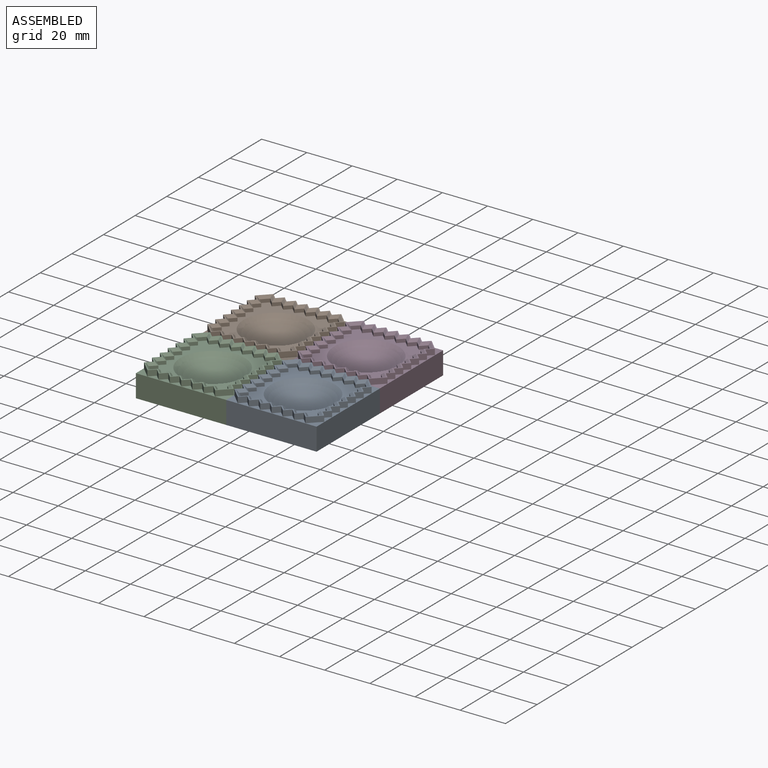
[diagram: assembled view]
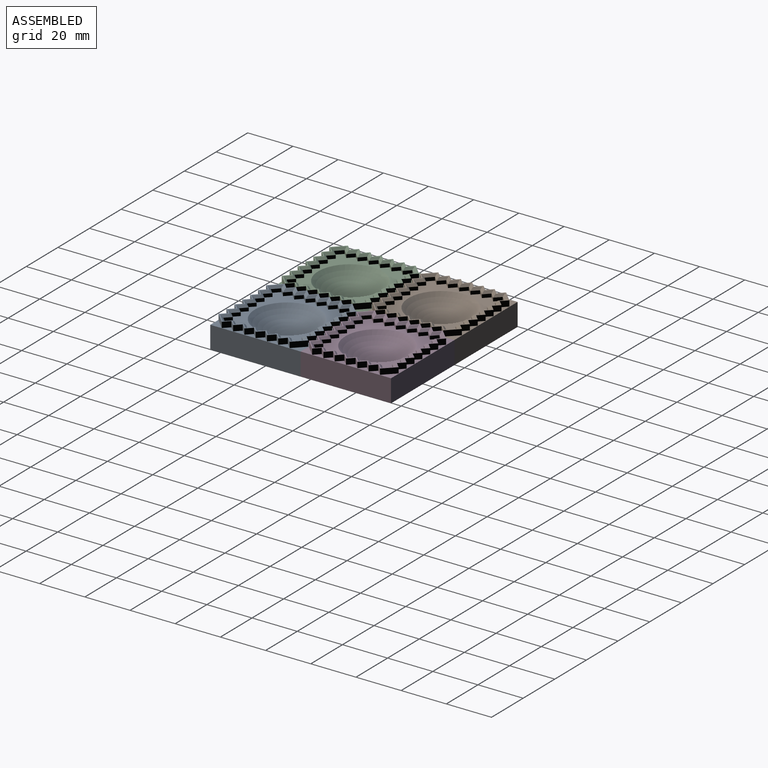
[diagram: assembled view, second angle]
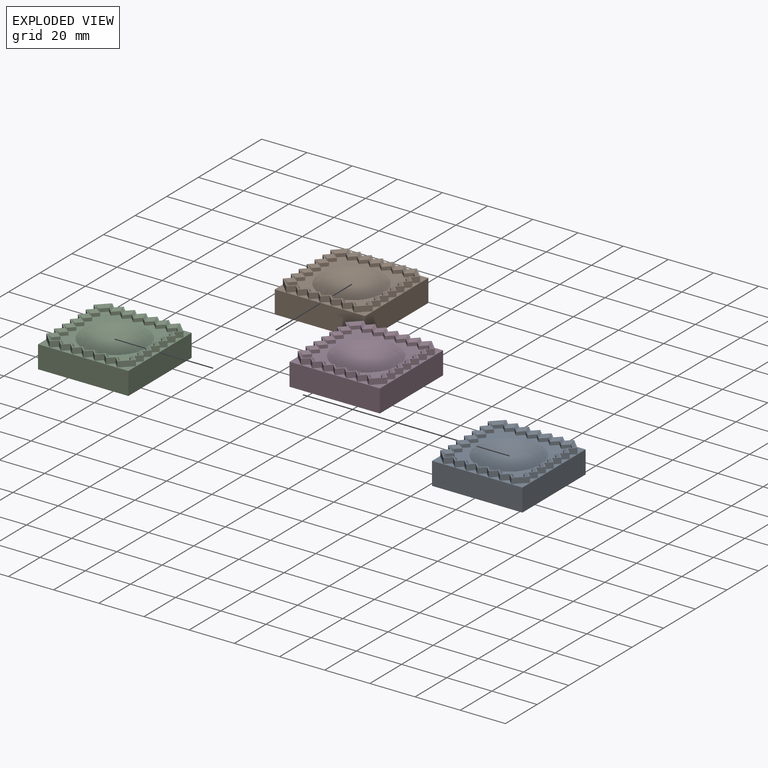
[diagram: exploded view]
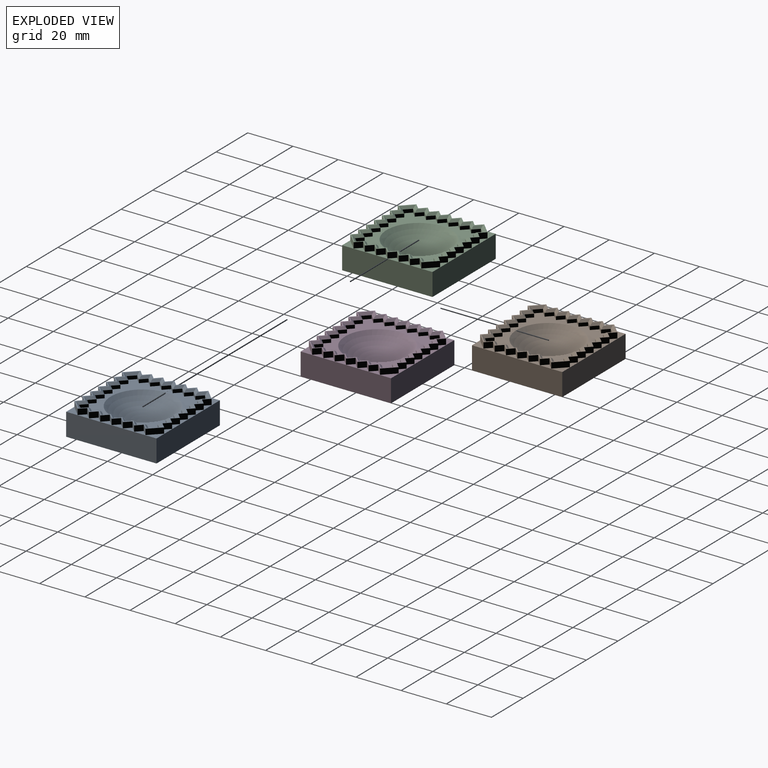
[diagram: exploded view, second angle]
ASSEMBLY  parts=4 mates=6
PART A: 165 faces, bbox 40x40x12.5 mm
  f0: plane 40x10mm, normal (1,0,0), area 400mm2, adj f1,f3,f4,f5
  f1: plane 40x10mm, normal (0,1,0), area 400mm2, adj f0,f2,f4,f5
  f2: plane 40x10mm, normal (-1,0,0), area 400mm2, adj f1,f3,f4,f5
  f3: plane 40x10mm, normal (0,-1,0), area 400mm2, adj f0,f2,f4,f5
  f4: plane 40x40mm, normal (0,0,1), area 218mm2, adj f0,f1,f2,f3,f6,f7,f8,f9
  f5: plane 40x40mm, normal (0,0,-1), area 1600mm2, adj f0,f1,f2,f3
  f6: plane 2.5x2.5mm, normal (-0.71,0.71,0), area 8.8mm2, adj f4,f7,f109,f110
  f7: plane 2.5x2.5mm, normal (-0.71,-0.71,0), area 8.8mm2, adj f4,f6,f8,f110
  f8: plane 2.5x2.5mm, normal (-0.71,0.71,0), area 8.8mm2, adj f4,f7,f9,f110
  f9: plane 2.5x2.5mm, normal (-0.71,-0.71,0), area 8.8mm2, adj f4,f8,f10,f110
  f10: plane 2.5x2.5mm, normal (-0.71,0.71,0), area 8.8mm2, adj f4,f9,f11,f110
  f11: plane 2.5x2.5mm, normal (-0.71,-0.71,0), area 8.8mm2, adj f4,f10,f12,f110
  f12: plane 2.5x2.5mm, normal (-0.71,0.71,0), area 8.8mm2, adj f4,f11,f13,f110
  f13: plane 4.87x4.87mm, normal (-0.71,-0.71,0), area 17.2mm2, adj f4,f12,f14,f110
  f14: plane 2.5x2.5mm, normal (0.71,-0.71,0), area 8.8mm2, adj f4,f13,f15,f110
  f15: plane 2.5x2.5mm, normal (-0.71,-0.71,0), area 8.8mm2, adj f4,f14,f16,f110
  f16: plane 2.5x2.5mm, normal (0.71,-0.71,0), area 8.8mm2, adj f4,f15,f17,f110
  f17: plane 2.5x2.5mm, normal (-0.71,-0.71,0), area 8.8mm2, adj f4,f16,f18,f110
  f18: plane 2.5x2.5mm, normal (0.71,-0.71,0), area 8.8mm2, adj f4,f17,f19,f110
  f19: plane 2.5x2.5mm, normal (-0.71,-0.71,0), area 8.8mm2, adj f4,f18,f20,f110
  f20: plane 2.5x2.5mm, normal (0.71,-0.71,0), area 8.8mm2, adj f4,f19,f21,f110
  f21: plane 2.5x2.5mm, normal (-0.71,-0.71,0), area 8.8mm2, adj f4,f20,f22,f110
  f22: plane 2.5x2.5mm, normal (0.71,-0.71,0), area 8.8mm2, adj f4,f21,f23,f110
  f23: plane 2.5x2.5mm, normal (-0.71,-0.71,0), area 8.8mm2, adj f4,f22,f24,f110
  f24: plane 2.5x2.5mm, normal (0.71,-0.71,0), area 8.8mm2, adj f4,f23,f25,f110
  f25: plane 2.5x2.5mm, normal (-0.71,-0.71,0), area 8.8mm2, adj f4,f24,f26,f110
  f26: plane 4.87x4.87mm, normal (0.71,-0.71,0), area 17.2mm2, adj f4,f25,f27,f110
  f27: plane 2.5x2.5mm, normal (0.71,0.71,0), area 8.8mm2, adj f4,f26,f28,f110
  f28: plane 2.5x2.5mm, normal (0.71,-0.71,0), area 8.8mm2, adj f4,f27,f29,f110
  f29: plane 2.5x2.5mm, normal (0.71,0.71,0), area 8.8mm2, adj f4,f28,f30,f110
  f30: plane 2.5x2.5mm, normal (0.71,-0.71,0), area 8.8mm2, adj f4,f29,f31,f110
  f31: plane 2.5x2.5mm, normal (0.71,0.71,0), area 8.8mm2, adj f4,f30,f32,f110
  f32: plane 2.5x2.5mm, normal (0.71,-0.71,0), area 8.8mm2, adj f4,f31,f33,f110
  f33: plane 2.5x2.5mm, normal (0.71,0.71,0), area 8.8mm2, adj f4,f32,f34,f110
  f34: plane 2.5x2.5mm, normal (0.71,-0.71,0), area 8.8mm2, adj f4,f33,f35,f110
  f35: plane 2.5x2.5mm, normal (0.71,0.71,0), area 8.8mm2, adj f4,f34,f36,f110
  f36: plane 2.5x2.5mm, normal (0.71,-0.71,0), area 8.8mm2, adj f4,f35,f37,f110
  f37: plane 2.5x2.5mm, normal (0.71,0.71,0), area 8.8mm2, adj f4,f36,f38,f110
  f38: plane 2.5x2.5mm, normal (0.71,-0.71,0), area 8.8mm2, adj f4,f37,f39,f110
  f39: plane 4.87x4.87mm, normal (0.71,0.71,0), area 17.2mm2, adj f4,f38,f40,f110
  f40: plane 2.5x2.5mm, normal (-0.71,0.71,0), area 8.8mm2, adj f4,f39,f41,f110
  f41: plane 2.5x2.5mm, normal (0.71,0.71,0), area 8.8mm2, adj f4,f40,f42,f110
  f42: plane 2.5x2.5mm, normal (-0.71,0.71,0), area 8.8mm2, adj f4,f41,f43,f110
  f43: plane 2.5x2.5mm, normal (0.71,0.71,0), area 8.8mm2, adj f4,f42,f44,f110
  f44: plane 2.5x2.5mm, normal (-0.71,0.71,0), area 8.8mm2, adj f4,f43,f45,f110
  f45: plane 2.5x2.5mm, normal (0.71,0.71,0), area 8.8mm2, adj f4,f44,f46,f110
  f46: plane 2.5x2.5mm, normal (-0.71,0.71,0), area 8.8mm2, adj f4,f45,f47,f110
  f47: plane 2.5x2.5mm, normal (0.71,0.71,0), area 8.8mm2, adj f4,f46,f48,f110
  f48: plane 2.5x2.5mm, normal (-0.71,0.71,0), area 8.8mm2, adj f4,f47,f49,f110
  f49: plane 2.5x2.5mm, normal (0.71,0.71,0), area 8.8mm2, adj f4,f48,f50,f110
  f50: plane 2.5x2.5mm, normal (-0.71,0.71,0), area 8.8mm2, adj f4,f49,f51,f110
  f51: plane 2.5x2.5mm, normal (0.71,0.71,0), area 8.8mm2, adj f4,f50,f52,f110
  f52: plane 4.87x4.87mm, normal (-0.71,0.71,0), area 17.2mm2, adj f4,f51,f53,f110
  f53: plane 2.5x2.5mm, normal (-0.71,-0.71,0), area 8.8mm2, adj f4,f52,f54,f110
  f54: plane 2.5x2.5mm, normal (-0.71,0.71,0), area 8.8mm2, adj f4,f53,f55,f110
  f55: plane 2.5x2.5mm, normal (-0.71,-0.71,0), area 8.8mm2, adj f4,f54,f56,f110
  f56: plane 2.5x2.5mm, normal (-0.71,0.71,0), area 8.8mm2, adj f4,f55,f109,f110
  f57: plane 2.75x2.75mm, normal (0.71,-0.71,0), area 5.8mm2, adj f58,f108,f112,f164
  f58: plane 2.5x2.5mm, normal (-0.71,-0.71,0), area 5.3mm2, adj f57,f59,f112,f162
  f59: plane 2.5x2.5mm, normal (0.71,-0.71,0), area 5.3mm2, adj f58,f60,f112,f160
  f60: plane 2.5x2.5mm, normal (-0.71,-0.71,0), area 5.3mm2, adj f59,f61,f112,f158
  f61: plane 2.5x2.5mm, normal (0.71,-0.71,0), area 5.3mm2, adj f60,f62,f112,f156
  f62: plane 2.5x2.5mm, normal (-0.71,-0.71,0), area 5.3mm2, adj f61,f63,f112,f154
  f63: plane 2.5x2.5mm, normal (0.71,-0.71,0), area 5.3mm2, adj f62,f64,f112,f152
  f64: plane 2.5x2.5mm, normal (-0.71,-0.71,0), area 5.3mm2, adj f63,f65,f112,f150
  f65: plane 2.5x2.5mm, normal (0.71,-0.71,0), area 5.3mm2, adj f64,f66,f112,f148
  f66: plane 2.5x2.5mm, normal (-0.71,-0.71,0), area 5.3mm2, adj f65,f67,f112,f146
  f67: plane 2.5x2.5mm, normal (0.71,-0.71,0), area 5.3mm2, adj f66,f68,f112,f144
  f68: plane 2.5x2.5mm, normal (-0.71,-0.71,0), area 5.3mm2, adj f67,f69,f112,f142
  f69: plane 2.5x2.5mm, normal (0.71,-0.71,0), area 5.3mm2, adj f68,f70,f112,f140
  f70: plane 2.75x2.75mm, normal (-0.71,-0.71,0), area 5.8mm2, adj f69,f71,f112,f138
  f71: plane 2.5x2.5mm, normal (-0.71,0.71,0), area 5.3mm2, adj f70,f72,f112,f136
  f72: plane 2.5x2.5mm, normal (-0.71,-0.71,0), area 5.3mm2, adj f71,f73,f112,f134
  f73: plane 2.5x2.5mm, normal (-0.71,0.71,0), area 5.3mm2, adj f72,f74,f112,f132
  f74: plane 2.5x2.5mm, normal (-0.71,-0.71,0), area 5.3mm2, adj f73,f75,f112,f130
  f75: plane 2.5x2.5mm, normal (-0.71,0.71,0), area 5.3mm2, adj f74,f76,f112,f128
  f76: plane 2.5x2.5mm, normal (-0.71,-0.71,0), area 5.3mm2, adj f75,f77,f112,f126
  f77: plane 2.5x2.5mm, normal (-0.71,0.71,0), area 5.3mm2, adj f76,f78,f112,f124
  f78: plane 2.5x2.5mm, normal (-0.71,-0.71,0), area 5.3mm2, adj f77,f79,f112,f122
  f79: plane 2.5x2.5mm, normal (-0.71,0.71,0), area 5.3mm2, adj f78,f80,f112,f120
  f80: plane 2.5x2.5mm, normal (-0.71,-0.71,0), area 5.3mm2, adj f79,f81,f112,f118
  f81: plane 2.5x2.5mm, normal (-0.71,0.71,0), area 5.3mm2, adj f80,f82,f112,f116
  f82: plane 2.5x2.5mm, normal (-0.71,-0.71,0), area 5.3mm2, adj f81,f83,f112,f114
  f83: plane 2.75x2.75mm, normal (-0.71,0.71,0), area 5.8mm2, adj f82,f84,f112,f113
  f84: plane 2.5x2.5mm, normal (0.71,0.71,0), area 5.3mm2, adj f83,f85,f112,f115
  f85: plane 2.5x2.5mm, normal (-0.71,0.71,0), area 5.3mm2, adj f84,f86,f112,f117
  f86: plane 2.5x2.5mm, normal (0.71,0.71,0), area 5.3mm2, adj f85,f87,f112,f119
  f87: plane 2.5x2.5mm, normal (-0.71,0.71,0), area 5.3mm2, adj f86,f88,f112,f121
  f88: plane 2.5x2.5mm, normal (0.71,0.71,0), area 5.3mm2, adj f87,f89,f112,f123
  f89: plane 2.5x2.5mm, normal (-0.71,0.71,0), area 5.3mm2, adj f88,f90,f112,f125
  f90: plane 2.5x2.5mm, normal (0.71,0.71,0), area 5.3mm2, adj f89,f91,f112,f127
  f91: plane 2.5x2.5mm, normal (-0.71,0.71,0), area 5.3mm2, adj f90,f92,f112,f129
  f92: plane 2.5x2.5mm, normal (0.71,0.71,0), area 5.3mm2, adj f91,f93,f112,f131
  f93: plane 2.5x2.5mm, normal (-0.71,0.71,0), area 5.3mm2, adj f92,f94,f112,f133
  f94: plane 2.5x2.5mm, normal (0.71,0.71,0), area 5.3mm2, adj f93,f95,f112,f135
  f95: plane 2.5x2.5mm, normal (-0.71,0.71,0), area 5.3mm2, adj f94,f96,f112,f137
  f96: plane 2.75x2.75mm, normal (0.71,0.71,0), area 5.8mm2, adj f95,f97,f112,f139
  f97: plane 2.5x2.5mm, normal (0.71,-0.71,0), area 5.3mm2, adj f96,f98,f112,f141
  f98: plane 2.5x2.5mm, normal (0.71,0.71,0), area 5.3mm2, adj f97,f99,f112,f143
  f99: plane 2.5x2.5mm, normal (0.71,-0.71,0), area 5.3mm2, adj f98,f100,f112,f145
  f100: plane 2.5x2.5mm, normal (0.71,0.71,0), area 5.3mm2, adj f99,f101,f112,f147
  f101: plane 2.5x2.5mm, normal (0.71,-0.71,0), area 5.3mm2, adj f100,f102,f112,f149
  f102: plane 2.5x2.5mm, normal (0.71,0.71,0), area 5.3mm2, adj f101,f103,f112,f151
  f103: plane 2.5x2.5mm, normal (0.71,-0.71,0), area 5.3mm2, adj f102,f104,f112,f153
  f104: plane 2.5x2.5mm, normal (0.71,0.71,0), area 5.3mm2, adj f103,f105,f112,f155
  f105: plane 2.5x2.5mm, normal (0.71,-0.71,0), area 5.3mm2, adj f104,f106,f112,f157
  f106: plane 2.5x2.5mm, normal (0.71,0.71,0), area 5.3mm2, adj f105,f107,f112,f159
  f107: plane 2.5x2.5mm, normal (0.71,-0.71,0), area 5.3mm2, adj f106,f108,f112,f161
  f108: plane 2.5x2.5mm, normal (0.71,0.71,0), area 5.3mm2, adj f57,f107,f112,f163
  f109: plane 2.5x2.5mm, normal (-0.71,-0.71,0), area 8.8mm2, adj f4,f6,f56,f110
  f110: plane 39.74x39.74mm, normal (0,0,1), area 97.6mm2, adj f6,f7,f8,f9,f10,f11,f12,f13
  f111: sphere r=20mm, area 754mm2, adj f112
  f112: plane 35.5x35.5mm, normal (0,0,1), area 454.2mm2, adj f57,f58,f59,f60,f61,f62,f63,f64
  f113: plane 4.16x4.16mm, normal (-0.5,0.5,0.71), area 6.9mm2, adj f83,f110,f114,f115
  f114: plane 3.91x2.5mm, normal (-0.5,-0.5,0.71), area 5mm2, adj f82,f110,f113,f116
  f115: plane 3.91x2.5mm, normal (0.5,0.5,0.71), area 5mm2, adj f84,f110,f113,f117
  f116: plane 3.91x2.5mm, normal (-0.5,0.5,0.71), area 5mm2, adj f81,f110,f114,f118
  f117: plane 3.91x2.5mm, normal (-0.5,0.5,0.71), area 5mm2, adj f85,f110,f115,f119
  f118: plane 3.91x2.5mm, normal (-0.5,-0.5,0.71), area 5mm2, adj f80,f110,f116,f120
  f119: plane 3.91x2.5mm, normal (0.5,0.5,0.71), area 5mm2, adj f86,f110,f117,f121
  f120: plane 3.91x2.5mm, normal (-0.5,0.5,0.71), area 5mm2, adj f79,f110,f118,f122
  f121: plane 3.91x2.5mm, normal (-0.5,0.5,0.71), area 5mm2, adj f87,f110,f119,f123
  f122: plane 3.91x2.5mm, normal (-0.5,-0.5,0.71), area 5mm2, adj f78,f110,f120,f124
  f123: plane 3.91x2.5mm, normal (0.5,0.5,0.71), area 5mm2, adj f88,f110,f121,f125
  f124: plane 3.91x2.5mm, normal (-0.5,0.5,0.71), area 5mm2, adj f77,f110,f122,f126
  f125: plane 3.91x2.5mm, normal (-0.5,0.5,0.71), area 5mm2, adj f89,f110,f123,f127
  f126: plane 3.91x2.5mm, normal (-0.5,-0.5,0.71), area 5mm2, adj f76,f110,f124,f128
  f127: plane 3.91x2.5mm, normal (0.5,0.5,0.71), area 5mm2, adj f90,f110,f125,f129
  f128: plane 3.91x2.5mm, normal (-0.5,0.5,0.71), area 5mm2, adj f75,f110,f126,f130
  f129: plane 3.91x2.5mm, normal (-0.5,0.5,0.71), area 5mm2, adj f91,f110,f127,f131
  f130: plane 3.91x2.5mm, normal (-0.5,-0.5,0.71), area 5mm2, adj f74,f110,f128,f132
  f131: plane 3.91x2.5mm, normal (0.5,0.5,0.71), area 5mm2, adj f92,f110,f129,f133
  f132: plane 3.91x2.5mm, normal (-0.5,0.5,0.71), area 5mm2, adj f73,f110,f130,f134
  f133: plane 3.91x2.5mm, normal (-0.5,0.5,0.71), area 5mm2, adj f93,f110,f131,f135
  f134: plane 3.91x2.5mm, normal (-0.5,-0.5,0.71), area 5mm2, adj f72,f110,f132,f136
  f135: plane 3.91x2.5mm, normal (0.5,0.5,0.71), area 5mm2, adj f94,f110,f133,f137
  f136: plane 3.91x2.5mm, normal (-0.5,0.5,0.71), area 5mm2, adj f71,f110,f134,f138
  f137: plane 3.91x2.5mm, normal (-0.5,0.5,0.71), area 5mm2, adj f95,f110,f135,f139
  f138: plane 4.16x4.16mm, normal (-0.5,-0.5,0.71), area 6.9mm2, adj f70,f110,f136,f140
  f139: plane 4.16x4.16mm, normal (0.5,0.5,0.71), area 6.9mm2, adj f96,f110,f137,f141
  f140: plane 3.91x2.5mm, normal (0.5,-0.5,0.71), area 5mm2, adj f69,f110,f138,f142
  f141: plane 3.91x2.5mm, normal (0.5,-0.5,0.71), area 5mm2, adj f97,f110,f139,f143
  f142: plane 3.91x2.5mm, normal (-0.5,-0.5,0.71), area 5mm2, adj f68,f110,f140,f144
  f143: plane 3.91x2.5mm, normal (0.5,0.5,0.71), area 5mm2, adj f98,f110,f141,f145
  f144: plane 3.91x2.5mm, normal (0.5,-0.5,0.71), area 5mm2, adj f67,f110,f142,f146
  f145: plane 3.91x2.5mm, normal (0.5,-0.5,0.71), area 5mm2, adj f99,f110,f143,f147
  f146: plane 3.91x2.5mm, normal (-0.5,-0.5,0.71), area 5mm2, adj f66,f110,f144,f148
  f147: plane 3.91x2.5mm, normal (0.5,0.5,0.71), area 5mm2, adj f100,f110,f145,f149
  f148: plane 3.91x2.5mm, normal (0.5,-0.5,0.71), area 5mm2, adj f65,f110,f146,f150
  f149: plane 3.91x2.5mm, normal (0.5,-0.5,0.71), area 5mm2, adj f101,f110,f147,f151
  f150: plane 3.91x2.5mm, normal (-0.5,-0.5,0.71), area 5mm2, adj f64,f110,f148,f152
  f151: plane 3.91x2.5mm, normal (0.5,0.5,0.71), area 5mm2, adj f102,f110,f149,f153
  f152: plane 3.91x2.5mm, normal (0.5,-0.5,0.71), area 5mm2, adj f63,f110,f150,f154
  f153: plane 3.91x2.5mm, normal (0.5,-0.5,0.71), area 5mm2, adj f103,f110,f151,f155
  f154: plane 3.91x2.5mm, normal (-0.5,-0.5,0.71), area 5mm2, adj f62,f110,f152,f156
  f155: plane 3.91x2.5mm, normal (0.5,0.5,0.71), area 5mm2, adj f104,f110,f153,f157
  f156: plane 3.91x2.5mm, normal (0.5,-0.5,0.71), area 5mm2, adj f61,f110,f154,f158
  f157: plane 3.91x2.5mm, normal (0.5,-0.5,0.71), area 5mm2, adj f105,f110,f155,f159
  f158: plane 3.91x2.5mm, normal (-0.5,-0.5,0.71), area 5mm2, adj f60,f110,f156,f160
  f159: plane 3.91x2.5mm, normal (0.5,0.5,0.71), area 5mm2, adj f106,f110,f157,f161
  f160: plane 3.91x2.5mm, normal (0.5,-0.5,0.71), area 5mm2, adj f59,f110,f158,f162
  f161: plane 3.91x2.5mm, normal (0.5,-0.5,0.71), area 5mm2, adj f107,f110,f159,f163
  f162: plane 3.91x2.5mm, normal (-0.5,-0.5,0.71), area 5mm2, adj f58,f110,f160,f164
  f163: plane 3.91x2.5mm, normal (0.5,0.5,0.71), area 5mm2, adj f108,f110,f161,f164
  f164: plane 4.16x4.16mm, normal (0.5,-0.5,0.71), area 6.9mm2, adj f57,f110,f162,f163
PART B: same geometry as A
PART C: same geometry as A
PART D: same geometry as A
PLACE A t=(13.24,-41.23,-43.16)mm
PLACE B t=(-26.76,-1.23,-43.16)mm
PLACE C t=(-26.76,-41.23,-43.16)mm
PLACE D t=(13.24,-1.23,-43.16)mm
MATE planar C.f5 <-> A.f5  axis (0,0,-1) through (-26.76,-41.23,-43.16)mm
MATE planar B.f3 <-> C.f1  axis (0,-1,0) through (-26.76,-21.23,-38.16)mm
MATE planar A.f2 <-> C.f0  axis (-1,0,0) through (-6.76,-41.23,-33.16)mm
MATE planar D.f5 <-> B.f5  axis (0,0,-1) through (13.24,-21.23,-43.16)mm
MATE planar D.f3 <-> A.f1  axis (0,-1,0) through (13.24,-21.23,-38.16)mm
MATE planar B.f0 <-> D.f2  axis (1,0,0) through (-6.76,-1.23,-38.16)mm
